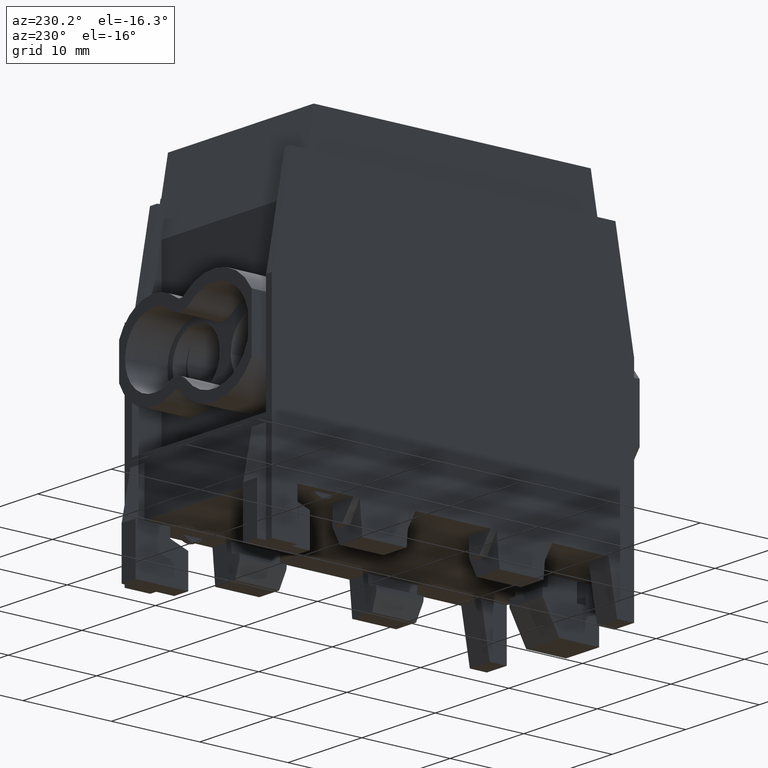
[diagram: clean part render]
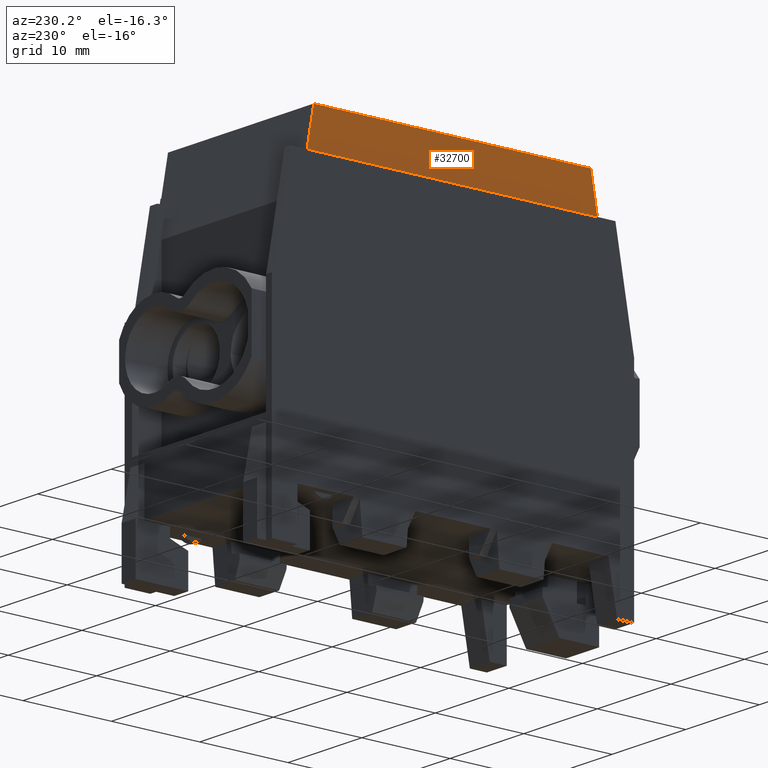
[diagram: same view with one face highlighted and labeled with its STEP entity id]
A machine part, auxiliary view. The second image highlights one B-rep face of the part: STEP entity #32700.
In plain terms, the highlighted planar face has unit normal (-1, 0, -0).
Its self-contained STEP definition (entity closure, byte-faithful):
#2270=CARTESIAN_POINT('',(-9.9,-16.4325665988531,-5.245359338705));
#2280=VERTEX_POINT('',#2270);
#2310=CARTESIAN_POINT('',(-9.9,-15.5076682239283,1.85089068511254E-15));
#2320=DIRECTION('',(-5.46678121111758E-17,0.17364817766693,
0.984807753012208));
#2330=VECTOR('',#2320,1.);
#2340=LINE('',#2310,#2330);
#2350=CARTESIAN_POINT('',(-9.9,-15.6743605818067,-0.945359338704996));
#2360=VERTEX_POINT('',#2350);
#2370=EDGE_CURVE('',#2280,#2360,#2340,.T.);
#26750=CARTESIAN_POINT('',(-9.9,2.86818959240843E-16,-0.945359338704993)
);
#26760=DIRECTION('',(3.93421109410852E-32,1.,1.79453955003165E-16));
#26770=VECTOR('',#26760,1.);
#26780=LINE('',#26750,#26770);
#26790=CARTESIAN_POINT('',(-9.9,15.6743605818067,-0.945359338704991));
#26800=VERTEX_POINT('',#26790);
#26810=EDGE_CURVE('',#2360,#26800,#26780,.T.);
#29630=CARTESIAN_POINT('',(-9.9,16.4325665988531,-5.24535933870502));
#29640=VERTEX_POINT('',#29630);
#29670=CARTESIAN_POINT('',(-9.9,1.59142502197366E-15,-5.24535933870501))
;
#29680=DIRECTION('',(-8.09650559282943E-32,-1.,5.70358363134666E-16));
#29690=VECTOR('',#29680,1.);
#29700=LINE('',#29670,#29690);
#29710=EDGE_CURVE('',#29640,#2280,#29700,.T.);
#32540=CARTESIAN_POINT('',(-9.9,13.9961613194521,-2.94535933870499));
#32550=DIRECTION('',(-1.,4.93038065763132E-32,-5.55111512312577E-17));
#32560=DIRECTION('',(5.55111512312577E-17,3.03396758775072E-16,-1.));
#32570=AXIS2_PLACEMENT_3D('',#32540,#32550,#32560);
#32580=PLANE('',#32570);
#32590=ORIENTED_EDGE('',*,*,#2370,.T.);
#32600=ORIENTED_EDGE('',*,*,#29710,.T.);
#32610=CARTESIAN_POINT('',(-9.9,15.5076682239283,1.12608432357106E-14));
#32620=DIRECTION('',(5.46678121111758E-17,0.173648177666931,
-0.984807753012208));
#32630=VECTOR('',#32620,1.);
#32640=LINE('',#32610,#32630);
#32650=EDGE_CURVE('',#26800,#29640,#32640,.T.);
#32660=ORIENTED_EDGE('',*,*,#32650,.T.);
#32670=ORIENTED_EDGE('',*,*,#26810,.T.);
#32680=EDGE_LOOP('',(#32670,#32660,#32600,#32590));
#32690=FACE_OUTER_BOUND('',#32680,.T.);
#32700=ADVANCED_FACE('',(#32690),#32580,.T.);